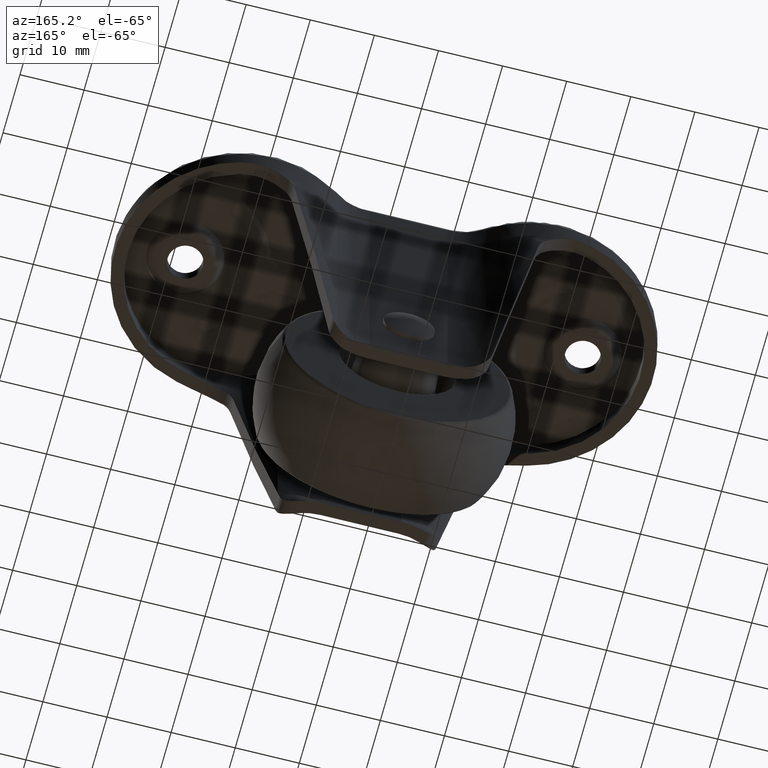
[diagram: clean part render]
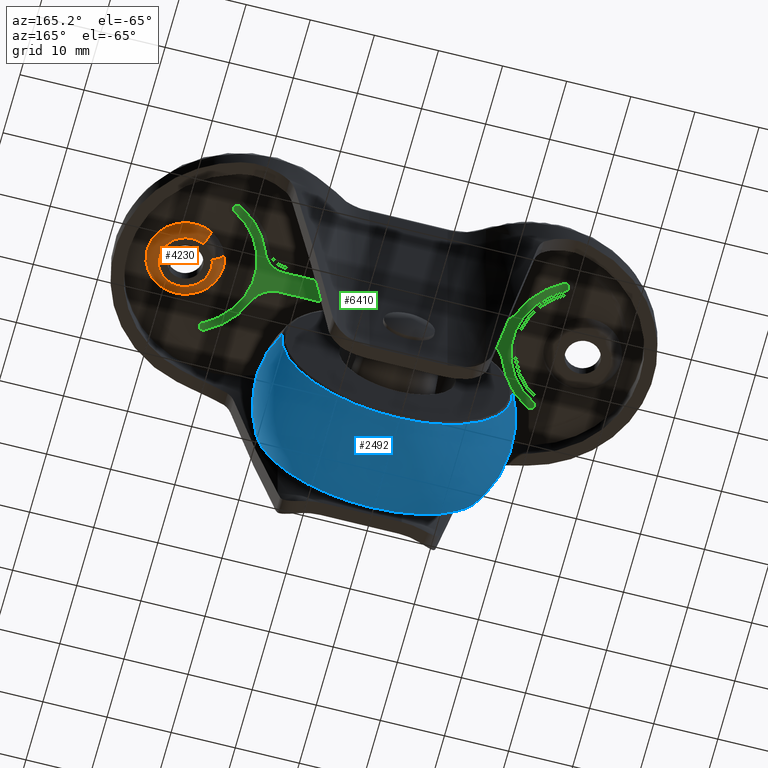
[diagram: same view with three faces highlighted in distinct colors, each labeled with its STEP entity id]
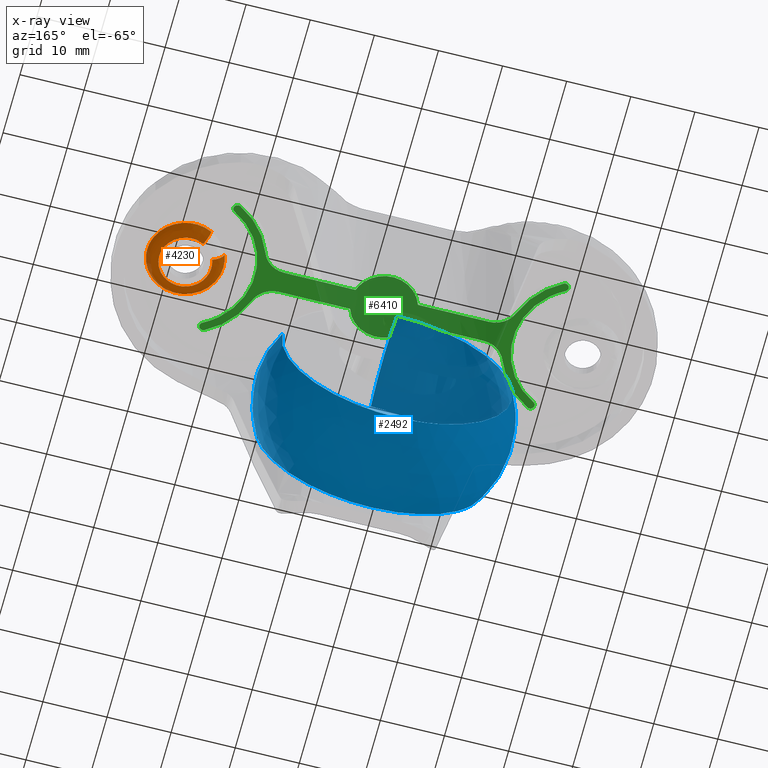
[diagram: x-ray of the same camera — body ghosted, the three highlighted faces saturated]
A machine part, auxiliary view with three faces highlighted in distinct colors.
The next image is the same camera in x-ray (body ghosted, the three faces saturated) — at least one of them is partly hidden behind the body in this view.
Their STEP definitions:

[orange] entity #4230 — the highlighted face is a freeform B-spline surface patch.
#4068=CARTESIAN_POINT('',(28.312324597725734,5.334928133989206,-2.092603392390837));
#4069=CARTESIAN_POINT('',(30.626397353814820,6.500731359338946,-2.092603392390837));
#4070=CARTESIAN_POINT('',(33.058792437057235,5.607711740445977,-2.092603392390837));
#4071=CARTESIAN_POINT('',(38.666504177503214,3.548919303388741,-2.092603392390837));
#4072=CARTESIAN_POINT('',(36.607711740445978,-2.058792437057237,-2.092603392390837));
#4073=CARTESIAN_POINT('',(34.548919303388750,-7.666504177503215,-2.092603392390837));
#4074=CARTESIAN_POINT('',(28.941207562942761,-5.607711740445976,-2.092603392390837));
#4075=CARTESIAN_POINT('',(23.333495822496790,-3.548919303388740,-2.092603392390837));
#4076=CARTESIAN_POINT('',(25.392288259554029,2.058792437057237,-2.092603392390837));
#4077=CARTESIAN_POINT('',(28.520642730723726,4.921424975233269,-3.585073412807262));
#4078=CARTESIAN_POINT('',(30.655354796246488,5.996868348666966,-3.585073412807261));
#4079=CARTESIAN_POINT('',(32.899218183278229,5.173065488457334,-3.585073412807261));
#4080=CARTESIAN_POINT('',(38.072283671735555,3.273847305179112,-3.585073412807261));
#4081=CARTESIAN_POINT('',(36.173065488457326,-1.899218183278221,-3.585073412807261));
#4082=CARTESIAN_POINT('',(34.273847305179103,-7.072283671735552,-3.585073412807261));
#4083=CARTESIAN_POINT('',(29.100781816721778,-5.173065488457334,-3.585073412807261));
#4084=CARTESIAN_POINT('',(23.927716328264442,-3.273847305179110,-3.585073412807261));
#4085=CARTESIAN_POINT('',(25.826934511542664,1.899218183278221,-3.585073412807261));
#4086=CARTESIAN_POINT('',(29.222581123483732,3.528105351630736,-3.496806839676225));
#4087=CARTESIAN_POINT('',(30.752928350244950,4.299076674018394,-3.496806839676224));
#4088=CARTESIAN_POINT('',(32.361524735225835,3.708503152239461,-3.496806839676225));
#4089=CARTESIAN_POINT('',(36.070027887465301,2.346978417013624,-3.496806839676225));
#4090=CARTESIAN_POINT('',(34.708503152239466,-1.361524735225836,-3.496806839676225));
#4091=CARTESIAN_POINT('',(33.346978417013631,-5.070027887465298,-3.496806839676225));
#4092=CARTESIAN_POINT('',(29.638475264774168,-3.708503152239461,-3.496806839676225));
#4093=CARTESIAN_POINT('',(25.929972112534703,-2.346978417013624,-3.496806839676225));
#4094=CARTESIAN_POINT('',(27.291496847760541,1.361524735225836,-3.496806839676225));
#4102=(BOUNDED_SURFACE()B_SPLINE_SURFACE(2,2,((#4068,#4077,#4086),(#4069,#4078,#4087),(#4070,#4079,#4088),(#4071,#4080,#4089),(#4072,#4081,#4090),(#4073,#4082,#4091),(#4074,#4083,#4092),(#4075,#4084,#4093),(#4076,#4085,#4094)),.UNSPECIFIED.,.F.,.F.,.U.)B_SPLINE_SURFACE_WITH_KNOTS((3,2,2,2,3),(3,3),(0.0,5.146723448267723,15.044268904130069,24.941814359992421,34.839359815854763),(0.0,2.754717168718973),.UNSPECIFIED.)GEOMETRIC_REPRESENTATION_ITEM()RATIONAL_B_SPLINE_SURFACE(((0.784923492481757,0.617762965718652,0.783009258505925),(0.779322697791132,0.613354939240144,0.777422122766256),(0.919342698590256,0.723555706298477,0.917100649465812),(0.650073456407510,0.511631146489875,0.648488088267863),(0.919342698590256,0.723555706298477,0.917100649465812),(0.650073456407510,0.511631146489875,0.648488088267863),(0.919342698590256,0.723555706298477,0.917100649465812),(0.650073456407510,0.511631146489875,0.648488088267863),(0.919342698590256,0.723555706298477,0.917100649465812)))REPRESENTATION_ITEM('')SURFACE());
#4103=CARTESIAN_POINT('',(29.171753296202120,3.628996270127606,-3.499999999999999));
#4104=VERTEX_POINT('',#4103);
#4105=CARTESIAN_POINT('',(35.063508326896290,0.0,-3.500000000000000));
#4106=VERTEX_POINT('',#4105);
#4107=CARTESIAN_POINT('',(29.171753296202123,3.628996270127606,-3.500000000000000));
#4108=CARTESIAN_POINT('',(30.034242279848637,4.063508326896290,-3.500000000000001));
#4109=CARTESIAN_POINT('',(31.0,4.063508326896290,-3.500000000000000));
#4110=CARTESIAN_POINT('',(35.063508326896304,4.063508326896290,-3.499999999999999));
#4111=CARTESIAN_POINT('',(35.063508326896290,0.0,-3.500000000000000));
#4119=(BOUNDED_CURVE()B_SPLINE_CURVE(2,(#4107,#4108,#4109,#4110,#4111),.UNSPECIFIED.,.F.,.U.)B_SPLINE_CURVE_WITH_KNOTS((3,2,3),(0.673503083069541,0.750000000000000,1.0),.UNSPECIFIED.)CURVE()GEOMETRIC_REPRESENTATION_ITEM()RATIONAL_B_SPLINE_CURVE((0.875602851992431,0.910378287083730,1.0,0.707106781186548,1.0))REPRESENTATION_ITEM(''));
#4120=EDGE_CURVE('',#4104,#4106,#4119,.T.);
#4121=ORIENTED_EDGE('',*,*,#4120,.F.);
#4122=CARTESIAN_POINT('',(28.328831657542040,5.302161863789421,-2.199999999988395));
#4123=VERTEX_POINT('',#4122);
#4124=CARTESIAN_POINT('',(28.328831657542040,5.302161863789421,-2.199999999988396));
#4125=CARTESIAN_POINT('',(28.547366896932981,4.868378191807821,-3.499999997303271));
#4126=CARTESIAN_POINT('',(29.171753296202116,3.628996270127606,-3.499999999999999));
#4134=(BOUNDED_CURVE()B_SPLINE_CURVE(2,(#4124,#4125,#4126),.UNSPECIFIED.,.F.,.U.)B_SPLINE_CURVE_WITH_KNOTS((3,3),(-1.674019596871434,-0.334035094913412),.UNSPECIFIED.)CURVE()GEOMETRIC_REPRESENTATION_ITEM()RATIONAL_B_SPLINE_CURVE((0.770336471141450,0.632217596236664,0.768685918290773))REPRESENTATION_ITEM(''));
#4135=EDGE_CURVE('',#4123,#4104,#4134,.T.);
#4136=ORIENTED_EDGE('',*,*,#4135,.F.);
#4137=CARTESIAN_POINT('',(36.874231720969000,0.861082128418889,-2.200000000000000));
#4138=VERTEX_POINT('',#4137);
#4139=CARTESIAN_POINT('',(28.328831657542040,5.302161863789421,-2.199999999988395));
#4140=CARTESIAN_POINT('',(29.386804474302348,5.835156436175389,-2.200000000000001));
#4141=CARTESIAN_POINT('',(30.568316302501980,5.921292927126259,-2.200000000000000));
#4142=CARTESIAN_POINT('',(36.073640331419760,6.322650985573358,-2.200000000000001));
#4143=CARTESIAN_POINT('',(36.874231720969007,0.861082128418892,-2.200000000000000));
#4151=(BOUNDED_CURVE()B_SPLINE_CURVE(2,(#4139,#4140,#4141,#4142,#4143),.UNSPECIFIED.,.F.,.U.)B_SPLINE_CURVE_WITH_KNOTS((3,2,3),(0.682067524614968,0.750000000000000,1.0),.UNSPECIFIED.)CURVE()GEOMETRIC_REPRESENTATION_ITEM()RATIONAL_B_SPLINE_CURVE((0.894073085266753,0.927274980150044,1.0,0.732362837369902,1.0))REPRESENTATION_ITEM(''));
#4152=EDGE_CURVE('',#4123,#4138,#4151,.T.);
#4153=ORIENTED_EDGE('',*,*,#4152,.T.);
#4154=CARTESIAN_POINT('',(36.874231720969000,-0.861082128418889,-2.200000000000000));
#4155=VERTEX_POINT('',#4154);
#4156=CARTESIAN_POINT('',(36.874231720969000,0.861082128418889,-2.200000000000000));
#4157=CARTESIAN_POINT('',(36.916306013523467,0.574054752279259,-2.200000000000006));
#4158=CARTESIAN_POINT('',(36.958228241231893,-1.084202E-015,-2.198610678664468));
#4159=CARTESIAN_POINT('',(36.916306013523467,-0.574054752279259,-2.200000000000006));
#4160=CARTESIAN_POINT('',(36.874231720969000,-0.861082128418888,-2.200000000000000));
#4161=B_SPLINE_CURVE_WITH_KNOTS('',3,(#4156,#4157,#4158,#4159,#4160),.UNSPECIFIED.,.F.,.U.,(4,1,4),(0.0,0.500000000000000,1.0),.UNSPECIFIED.);
#4162=EDGE_CURVE('',#4138,#4155,#4161,.T.);
#4163=ORIENTED_EDGE('',*,*,#4162,.T.);
#4164=CARTESIAN_POINT('',(25.426729834078269,2.046147697793684,-2.199999999995812));
#4165=VERTEX_POINT('',#4164);
#4166=CARTESIAN_POINT('',(36.874231720969007,-0.861082128418891,-2.200000000000000));
#4167=CARTESIAN_POINT('',(36.073640331419760,-6.322650985573359,-2.200000000000001));
#4168=CARTESIAN_POINT('',(30.568316302501980,-5.921292927126259,-2.200000000000000));
#4169=CARTESIAN_POINT('',(25.062992273584189,-5.519934868679157,-2.200000000000001));
#4170=CARTESIAN_POINT('',(25.062992273584189,0.0,-2.200000000000000));
#4171=CARTESIAN_POINT('',(25.062992273584193,1.055404118401007,-2.200000000000000));
#4172=CARTESIAN_POINT('',(25.426729834078269,2.046147697793683,-2.199999999995812));
#4180=(BOUNDED_CURVE()B_SPLINE_CURVE(2,(#4166,#4167,#4168,#4169,#4170,#4171,#4172),.UNSPECIFIED.,.F.,.U.)B_SPLINE_CURVE_WITH_KNOTS((3,2,2,3),(0.0,0.250000000000000,0.500000000000000,0.561005164668083),.UNSPECIFIED.)CURVE()GEOMETRIC_REPRESENTATION_ITEM()RATIONAL_B_SPLINE_CURVE((1.0,0.732362837369902,1.0,0.732362837369902,1.0,0.934691003289809,0.901255495368518))REPRESENTATION_ITEM(''));
#4181=EDGE_CURVE('',#4155,#4165,#4180,.T.);
#4182=ORIENTED_EDGE('',*,*,#4181,.T.);
#4183=CARTESIAN_POINT('',(27.185447145747698,1.400459392337944,-3.499999999999999));
#4184=VERTEX_POINT('',#4183);
#4185=CARTESIAN_POINT('',(25.426729834078277,2.046147697793684,-2.199999999995812));
#4186=CARTESIAN_POINT('',(25.882693579451235,1.878747026303524,-3.499999988948963));
#4187=CARTESIAN_POINT('',(27.185447145747702,1.400459392337944,-3.500000000000000));
#4195=(BOUNDED_CURVE()B_SPLINE_CURVE(2,(#4185,#4186,#4187),.UNSPECIFIED.,.F.,.U.)B_SPLINE_CURVE_WITH_KNOTS((3,3),(-1.674019596862119,-0.334035101980704),.UNSPECIFIED.)CURVE()GEOMETRIC_REPRESENTATION_ITEM()RATIONAL_B_SPLINE_CURVE((0.902257629708614,0.740485712243223,0.900324415774663))REPRESENTATION_ITEM(''));
#4196=EDGE_CURVE('',#4165,#4184,#4195,.T.);
#4197=ORIENTED_EDGE('',*,*,#4196,.T.);
#4198=CARTESIAN_POINT('',(26.936491673103710,0.0,-3.500000000000000));
#4199=VERTEX_POINT('',#4198);
#4200=CARTESIAN_POINT('',(26.936491673103710,0.0,-3.500000000000000));
#4201=CARTESIAN_POINT('',(26.936491673103710,0.722357731425740,-3.500000000000000));
#4202=CARTESIAN_POINT('',(27.185447145747702,1.400459392337943,-3.499999999999999));
#4210=(BOUNDED_CURVE()B_SPLINE_CURVE(2,(#4200,#4201,#4202),.UNSPECIFIED.,.F.,.U.)B_SPLINE_CURVE_WITH_KNOTS((3,3),(0.500000000000000,0.558539649918965),.UNSPECIFIED.)CURVE()GEOMETRIC_REPRESENTATION_ITEM()RATIONAL_B_SPLINE_CURVE((1.0,0.931416534028087,0.894951884761974))REPRESENTATION_ITEM(''));
#4211=EDGE_CURVE('',#4199,#4184,#4210,.T.);
#4212=ORIENTED_EDGE('',*,*,#4211,.F.);
#4213=CARTESIAN_POINT('',(35.063508326896290,0.0,-3.500000000000000));
#4214=CARTESIAN_POINT('',(35.063508326896304,-4.063508326896290,-3.499999999999999));
#4215=CARTESIAN_POINT('',(31.0,-4.063508326896290,-3.500000000000000));
#4216=CARTESIAN_POINT('',(26.936491673103703,-4.063508326896290,-3.499999999999999));
#4217=CARTESIAN_POINT('',(26.936491673103710,0.0,-3.500000000000000));
#4225=(BOUNDED_CURVE()B_SPLINE_CURVE(2,(#4213,#4214,#4215,#4216,#4217),.UNSPECIFIED.,.F.,.U.)B_SPLINE_CURVE_WITH_KNOTS((3,2,3),(0.0,0.250000000000000,0.500000000000000),.UNSPECIFIED.)CURVE()GEOMETRIC_REPRESENTATION_ITEM()RATIONAL_B_SPLINE_CURVE((1.0,0.707106781186548,1.0,0.707106781186548,1.0))REPRESENTATION_ITEM(''));
#4226=EDGE_CURVE('',#4106,#4199,#4225,.T.);
#4227=ORIENTED_EDGE('',*,*,#4226,.F.);
#4228=EDGE_LOOP('',(#4121,#4136,#4153,#4163,#4182,#4197,#4212,#4227));
#4229=FACE_OUTER_BOUND('',#4228,.T.);
#4230=ADVANCED_FACE('',(#4229),#4102,.T.);

[blue] entity #2492 — the highlighted face is a freeform B-spline surface patch.
#1856=CARTESIAN_POINT('',(-6.583102474062869,7.741935983909096,-56.755388244434762));
#1857=VERTEX_POINT('',#1856);
#1871=CARTESIAN_POINT('',(-15.883205385239179,7.741946591250689,-31.526281791966980));
#1872=VERTEX_POINT('',#1871);
#1873=CARTESIAN_POINT('',(-6.583102474062869,7.741935983909096,-56.755388244434755));
#1874=CARTESIAN_POINT('',(-18.002229203415219,7.741937794318643,-52.268875533489513));
#1875=CARTESIAN_POINT('',(-18.002228743686022,7.741942987803516,-40.000004819484943));
#1876=CARTESIAN_POINT('',(-18.002228574997702,7.741944893447470,-35.498191517728969));
#1877=CARTESIAN_POINT('',(-15.883205385239178,7.741946591250690,-31.526281791966980));
#1885=(BOUNDED_CURVE()B_SPLINE_CURVE(2,(#1873,#1874,#1875,#1876,#1877),.UNSPECIFIED.,.F.,.U.)B_SPLINE_CURVE_WITH_KNOTS((3,2,3),(0.562091869762726,0.750000000000000,0.830114582980019),.UNSPECIFIED.)CURVE()GEOMETRIC_REPRESENTATION_ITEM()RATIONAL_B_SPLINE_CURVE((0.890644758454391,0.779851931574349,1.0,0.906139927668339,0.872436339763282))REPRESENTATION_ITEM(''));
#1886=EDGE_CURVE('',#1857,#1872,#1885,.T.);
#1979=CARTESIAN_POINT('',(0.0,7.741951547438309,-21.997779239106979));
#1980=VERTEX_POINT('',#1979);
#1981=CARTESIAN_POINT('',(-15.883205385239178,7.741946591250690,-31.526281791966980));
#1982=CARTESIAN_POINT('',(-10.799728147037877,7.741951186537047,-21.997779546414485));
#1983=CARTESIAN_POINT('',(0.0,7.741951547438309,-21.997779239106979));
#1991=(BOUNDED_CURVE()B_SPLINE_CURVE(2,(#1981,#1982,#1983),.UNSPECIFIED.,.F.,.U.)B_SPLINE_CURVE_WITH_KNOTS((3,3),(0.830114582980019,1.0),.UNSPECIFIED.)CURVE()GEOMETRIC_REPRESENTATION_ITEM()RATIONAL_B_SPLINE_CURVE((0.872436339763282,0.800966853518208,1.0))REPRESENTATION_ITEM(''));
#1992=EDGE_CURVE('',#1872,#1980,#1991,.T.);
#1994=CARTESIAN_POINT('',(17.881824193254381,7.741935547214126,-37.921386432067912));
#1995=VERTEX_POINT('',#1994);
#2009=CARTESIAN_POINT('',(0.0,7.741935547366899,-58.002229607473851));
#2010=VERTEX_POINT('',#2009);
#2011=CARTESIAN_POINT('',(17.881824193254381,7.741935547214126,-37.921386432067912));
#2012=CARTESIAN_POINT('',(18.002229607473847,7.741935547366898,-38.957205924249116));
#2013=CARTESIAN_POINT('',(18.002229607473851,7.741935547366899,-40.0));
#2014=CARTESIAN_POINT('',(18.002229607473854,7.741935547366898,-58.002229607473836));
#2015=CARTESIAN_POINT('',(0.0,7.741935547366899,-58.002229607473851));
#2023=(BOUNDED_CURVE()B_SPLINE_CURVE(2,(#2011,#2012,#2013,#2014,#2015),.UNSPECIFIED.,.F.,.U.)B_SPLINE_CURVE_WITH_KNOTS((3,2,3),(0.229999999997610,0.250000000000000,0.500000000000000),.UNSPECIFIED.)CURVE()GEOMETRIC_REPRESENTATION_ITEM()RATIONAL_B_SPLINE_CURVE((0.956886118185955,0.976568542492124,1.0,0.707106781186547,1.0))REPRESENTATION_ITEM(''));
#2024=EDGE_CURVE('',#1995,#2010,#2023,.T.);
#2026=CARTESIAN_POINT('',(0.0,7.741935547366899,-58.002229607473851));
#2027=CARTESIAN_POINT('',(-3.409627338282087,7.741935547366898,-58.002229607473851));
#2028=CARTESIAN_POINT('',(-6.583102474062869,7.741935983909096,-56.755388244434755));
#2036=(BOUNDED_CURVE()B_SPLINE_CURVE(2,(#2026,#2027,#2028),.UNSPECIFIED.,.F.,.U.)B_SPLINE_CURVE_WITH_KNOTS((3,3),(0.500000000000000,0.562091869762726),.UNSPECIFIED.)CURVE()GEOMETRIC_REPRESENTATION_ITEM()RATIONAL_B_SPLINE_CURVE((1.0,0.927254849612198,0.890644758454391))REPRESENTATION_ITEM(''));
#2037=EDGE_CURVE('',#2010,#1857,#2036,.T.);
#2066=CARTESIAN_POINT('',(-15.665247738888519,-7.741937070541369,-48.870190728865282));
#2067=VERTEX_POINT('',#2066);
#2068=CARTESIAN_POINT('',(0.0,-7.741943057777658,-21.997774519785970));
#2069=VERTEX_POINT('',#2068);
#2070=CARTESIAN_POINT('',(-15.665247738888526,-7.741937070541369,-48.870190728865289));
#2071=CARTESIAN_POINT('',(-18.002229675233551,-7.741938274349529,-44.742952509890358));
#2072=CARTESIAN_POINT('',(-18.002229675233551,-7.741939271816439,-40.000002097509757));
#2073=CARTESIAN_POINT('',(-18.002229675233544,-7.741943057777659,-21.997774519785970));
#2074=CARTESIAN_POINT('',(0.0,-7.741943057777658,-21.997774519785970));
#2082=(BOUNDED_CURVE()B_SPLINE_CURVE(2,(#2070,#2071,#2072,#2073,#2074),.UNSPECIFIED.,.F.,.U.)B_SPLINE_CURVE_WITH_KNOTS((3,2,3),(0.666016369419231,0.750000000000000,1.0),.UNSPECIFIED.)CURVE()GEOMETRIC_REPRESENTATION_ITEM()RATIONAL_B_SPLINE_CURVE((0.869321285877861,0.901607056446235,1.0,0.707106781186548,1.0))REPRESENTATION_ITEM(''));
#2083=EDGE_CURVE('',#2067,#2069,#2082,.T.);
#2186=CARTESIAN_POINT('',(0.0,-7.741935485855220,-58.002229675233551));
#2187=VERTEX_POINT('',#2186);
#2188=CARTESIAN_POINT('',(0.0,-7.741935485855220,-58.002229675233551));
#2189=CARTESIAN_POINT('',(-10.494380521530118,-7.741935485855220,-58.002229675233544));
#2190=CARTESIAN_POINT('',(-15.665247738888517,-7.741937070541369,-48.870190728865282));
#2198=(BOUNDED_CURVE()B_SPLINE_CURVE(2,(#2188,#2189,#2190),.UNSPECIFIED.,.F.,.U.)B_SPLINE_CURVE_WITH_KNOTS((3,3),(0.500000000000000,0.666016369419231),.UNSPECIFIED.)CURVE()GEOMETRIC_REPRESENTATION_ITEM()RATIONAL_B_SPLINE_CURVE((1.0,0.805499724740313,0.869321285877860))REPRESENTATION_ITEM(''));
#2199=EDGE_CURVE('',#2187,#2067,#2198,.T.);
#2201=CARTESIAN_POINT('',(17.881824247721340,-7.741935478560965,-37.921386425737921));
#2202=VERTEX_POINT('',#2201);
#2203=CARTESIAN_POINT('',(17.881824247721347,-7.741935478560965,-37.921386425737914));
#2204=CARTESIAN_POINT('',(18.002229675233554,-7.741935485855221,-38.957205920325414));
#2205=CARTESIAN_POINT('',(18.002229675233551,-7.741935485855220,-40.0));
#2206=CARTESIAN_POINT('',(18.002229675233544,-7.741935485855221,-58.002229675233544));
#2207=CARTESIAN_POINT('',(0.0,-7.741935485855220,-58.002229675233551));
#2215=(BOUNDED_CURVE()B_SPLINE_CURVE(2,(#2203,#2204,#2205,#2206,#2207),.UNSPECIFIED.,.F.,.U.)B_SPLINE_CURVE_WITH_KNOTS((3,2,3),(0.229999999997635,0.250000000000000,0.500000000000000),.UNSPECIFIED.)CURVE()GEOMETRIC_REPRESENTATION_ITEM()RATIONAL_B_SPLINE_CURVE((0.956886118186004,0.976568542492153,1.0,0.707106781186548,1.0))REPRESENTATION_ITEM(''));
#2216=EDGE_CURVE('',#2202,#2187,#2215,.T.);
#2422=CARTESIAN_POINT('',(17.496559419946646,8.405290714135607,-37.966170700163929));
#2423=CARTESIAN_POINT('',(22.651137600508850,0.000005855489433,-37.366993920301063));
#2424=CARTESIAN_POINT('',(17.496564619774055,-8.405282235059405,-37.966170095727307));
#2425=CARTESIAN_POINT('',(17.614370643216155,8.405290714135607,-38.979673194418410));
#2426=CARTESIAN_POINT('',(22.803656628113789,0.000005855489433,-38.679079565530564));
#2427=CARTESIAN_POINT('',(17.614375878056066,-8.405282235059405,-38.979672891186055));
#2428=CARTESIAN_POINT('',(17.614370643216159,8.405290714135607,-39.999999999999993));
#2429=CARTESIAN_POINT('',(22.803656628113785,0.000005855489433,-40.0));
#2430=CARTESIAN_POINT('',(17.614375878056066,-8.405282235059405,-40.000000000000007));
#2431=CARTESIAN_POINT('',(17.614370643216148,8.405290714135605,-57.614370643216148));
#2432=CARTESIAN_POINT('',(22.803656628113792,0.000005855489433,-62.803656628113785));
#2433=CARTESIAN_POINT('',(17.614375878056066,-8.405282235059403,-57.614375878056059));
#2434=CARTESIAN_POINT('',(0.0,8.405290714135607,-57.614370643216162));
#2435=CARTESIAN_POINT('',(0.0,0.000005855489433,-62.803656628113814));
#2436=CARTESIAN_POINT('',(0.0,-8.405282235059405,-57.614375878056066));
#2437=CARTESIAN_POINT('',(-17.614370643216148,8.405290714135605,-57.614370643216148));
#2438=CARTESIAN_POINT('',(-22.803656628113792,0.000005855489433,-62.803656628113785));
#2439=CARTESIAN_POINT('',(-17.614375878056066,-8.405282235059403,-57.614375878056059));
#2440=CARTESIAN_POINT('',(-17.614370643216159,8.405290714135607,-39.999999999999993));
#2441=CARTESIAN_POINT('',(-22.803656628113785,0.000005855489433,-40.0));
#2442=CARTESIAN_POINT('',(-17.614375878056066,-8.405282235059405,-40.000000000000007));
#2443=CARTESIAN_POINT('',(-17.614370643216148,8.405290714135605,-22.385629356783852));
#2444=CARTESIAN_POINT('',(-22.803656628113792,0.000005855489433,-17.196343371886226));
#2445=CARTESIAN_POINT('',(-17.614375878056066,-8.405282235059403,-22.385624121943945));
#2446=CARTESIAN_POINT('',(0.0,8.405290714135607,-22.385629356783848));
#2447=CARTESIAN_POINT('',(0.0,0.000005855489433,-17.196343371886211));
#2448=CARTESIAN_POINT('',(0.0,-8.405282235059405,-22.385624121943941));
#2456=(BOUNDED_SURFACE()B_SPLINE_SURFACE(2,2,((#2422,#2425,#2428,#2431,#2434,#2437,#2440,#2443,#2446),(#2423,#2426,#2429,#2432,#2435,#2438,#2441,#2444,#2447),(#2424,#2427,#2430,#2433,#2436,#2439,#2442,#2445,#2448)),.UNSPECIFIED.,.F.,.F.,.U.)B_SPLINE_SURFACE_WITH_KNOTS((3,3),(3,2,2,2,3),(0.0,18.164771870735130),(0.0,2.650966246152919,35.788051235999042,68.925136225845151,102.062221215691300),.UNSPECIFIED.)GEOMETRIC_REPRESENTATION_ITEM()RATIONAL_B_SPLINE_SURFACE(((0.941373274418783,0.960736607813914,0.983788194273083,0.695643303421766,0.983788194273083,0.695643303421766,0.983788194273083,0.695643303421766,0.983788194273083),(0.801012875174051,0.817489101743543,0.837103656404001,0.591921671999323,0.837103656404001,0.591921671999323,0.837103656404001,0.591921671999323,0.837103656404001),(0.941373108015195,0.960736437987531,0.983788020371943,0.695643180455091,0.983788020371943,0.695643180455091,0.983788020371943,0.695643180455091,0.983788020371943)))REPRESENTATION_ITEM('')SURFACE());
#2457=ORIENTED_EDGE('',*,*,#2024,.F.);
#2458=CARTESIAN_POINT('',(17.881824193254378,7.741935547214126,-37.921386432067912));
#2459=CARTESIAN_POINT('',(22.133767148921621,0.000000049482788,-37.427133372683564));
#2460=CARTESIAN_POINT('',(17.881824247721344,-7.741935478560965,-37.921386425737929));
#2468=(BOUNDED_CURVE()B_SPLINE_CURVE(2,(#2458,#2459,#2460),.UNSPECIFIED.,.F.,.U.)B_SPLINE_CURVE_WITH_KNOTS((3,3),(0.362871079323243,0.637128919142702),.UNSPECIFIED.)CURVE()GEOMETRIC_REPRESENTATION_ITEM()RATIONAL_B_SPLINE_CURVE((0.929203502125697,0.813182549960822,0.929203500827776))REPRESENTATION_ITEM(''));
#2469=EDGE_CURVE('',#1995,#2202,#2468,.T.);
#2470=ORIENTED_EDGE('',*,*,#2469,.T.);
#2471=ORIENTED_EDGE('',*,*,#2216,.T.);
#2472=ORIENTED_EDGE('',*,*,#2199,.T.);
#2473=ORIENTED_EDGE('',*,*,#2083,.T.);
#2474=CARTESIAN_POINT('',(0.0,7.741951547438311,-21.997779239106976));
#2475=CARTESIAN_POINT('',(0.0,0.000005549506526,-17.717188908290318));
#2476=CARTESIAN_POINT('',(0.0,-7.741943057777659,-21.997774519785970));
#2484=(BOUNDED_CURVE()B_SPLINE_CURVE(2,(#2474,#2475,#2476),.UNSPECIFIED.,.F.,.U.)B_SPLINE_CURVE_WITH_KNOTS((3,3),(0.362870755481486,0.637129072473942),.UNSPECIFIED.)CURVE()GEOMETRIC_REPRESENTATION_ITEM()RATIONAL_B_SPLINE_CURVE((0.971070390148924,0.849821449638029,0.971070238028040))REPRESENTATION_ITEM(''));
#2485=EDGE_CURVE('',#1980,#2069,#2484,.T.);
#2486=ORIENTED_EDGE('',*,*,#2485,.F.);
#2487=ORIENTED_EDGE('',*,*,#1992,.F.);
#2488=ORIENTED_EDGE('',*,*,#1886,.F.);
#2489=ORIENTED_EDGE('',*,*,#2037,.F.);
#2490=EDGE_LOOP('',(#2457,#2470,#2471,#2472,#2473,#2486,#2487,#2488,#2489));
#2491=FACE_OUTER_BOUND('',#2490,.T.);
#2492=ADVANCED_FACE('',(#2491),#2456,.T.);

[green] entity #6410 — the highlighted face is a freeform B-spline surface patch.
#4312=CARTESIAN_POINT('',(-25.196794784799302,-10.656272741060620,-2.500000000000000));
#4313=VERTEX_POINT('',#4312);
#4314=CARTESIAN_POINT('',(-26.133974597908079,-10.099505007401669,-2.500000000000000));
#4315=VERTEX_POINT('',#4314);
#4316=CARTESIAN_POINT('',(-25.196794784799302,-10.656272741060620,-2.500000000000000));
#4317=CARTESIAN_POINT('',(-25.518244791713311,-10.831328416259923,-2.500000000000000));
#4318=CARTESIAN_POINT('',(-25.830572428652012,-10.640472335484930,-2.500000000000000));
#4319=CARTESIAN_POINT('',(-26.133974587912945,-10.455070404414132,-2.500000000000000));
#4320=CARTESIAN_POINT('',(-26.133974597908082,-10.099505007401675,-2.500000000000000));
#4328=(BOUNDED_CURVE()B_SPLINE_CURVE(2,(#4316,#4317,#4318,#4319,#4320),.UNSPECIFIED.,.F.,.U.)B_SPLINE_CURVE_WITH_KNOTS((3,2,3),(0.0,0.333333333333333,0.658385407540273),.UNSPECIFIED.)CURVE()GEOMETRIC_REPRESENTATION_ITEM()RATIONAL_B_SPLINE_CURVE((1.0,0.866025403664095,1.0,0.869353838709930,0.993508511706930))REPRESENTATION_ITEM(''));
#4329=EDGE_CURVE('',#4313,#4315,#4328,.T.);
#4402=CARTESIAN_POINT('',(-25.803205240285649,-9.542737210962001,-2.500000000000000));
#4403=VERTEX_POINT('',#4402);
#4404=CARTESIAN_POINT('',(-26.133974597908082,-10.099505007401675,-2.500000000000000));
#4405=CARTESIAN_POINT('',(-26.133974596400062,-10.091603553433030,-2.500000000000000));
#4406=CARTESIAN_POINT('',(-26.133777669466031,-10.083704546433960,-2.500000000000000));
#4407=CARTESIAN_POINT('',(-26.124655273341361,-9.717792838157989,-2.500000000000000));
#4408=CARTESIAN_POINT('',(-25.803205240285600,-9.542737210962088,-2.500000000000000));
#4416=(BOUNDED_CURVE()B_SPLINE_CURVE(2,(#4404,#4405,#4406,#4407,#4408),.UNSPECIFIED.,.F.,.U.)B_SPLINE_CURVE_WITH_KNOTS((3,2,3),(0.658385407540273,0.666666666666667,1.0),.UNSPECIFIED.)CURVE()GEOMETRIC_REPRESENTATION_ITEM()RATIONAL_B_SPLINE_CURVE((0.993508511706930,0.996671564954165,1.0,0.866025403664095,1.0))REPRESENTATION_ITEM(''));
#4417=EDGE_CURVE('',#4315,#4403,#4416,.T.);
#4476=CARTESIAN_POINT('',(-25.803205265370149,9.542737162984860,-2.500000000000000));
#4477=VERTEX_POINT('',#4476);
#4478=CARTESIAN_POINT('',(-26.133974597908079,10.099505007401810,-2.500000000000000));
#4479=VERTEX_POINT('',#4478);
#4480=CARTESIAN_POINT('',(-25.803205265370149,9.542737162984860,-2.500000000000000));
#4481=CARTESIAN_POINT('',(-26.124655272789870,9.717792837255603,-2.500000000000000));
#4482=CARTESIAN_POINT('',(-26.133777669443202,10.083704545518430,-2.500000000000000));
#4483=CARTESIAN_POINT('',(-26.133974596400058,10.091603552975110,-2.500000000000000));
#4484=CARTESIAN_POINT('',(-26.133974597908079,10.099505007401813,-2.500000000000000));
#4492=(BOUNDED_CURVE()B_SPLINE_CURVE(2,(#4480,#4481,#4482,#4483,#4484),.UNSPECIFIED.,.F.,.U.)B_SPLINE_CURVE_WITH_KNOTS((3,2,3),(0.0,0.333333333333333,0.341614592938200),.UNSPECIFIED.)CURVE()GEOMETRIC_REPRESENTATION_ITEM()RATIONAL_B_SPLINE_CURVE((1.0,0.866025403664081,1.0,0.996671564761855,0.993508511341421))REPRESENTATION_ITEM(''));
#4493=EDGE_CURVE('',#4477,#4479,#4492,.T.);
#4576=CARTESIAN_POINT('',(-25.196794759714749,10.656272789037899,-2.500000000000000));
#4577=VERTEX_POINT('',#4576);
#4578=CARTESIAN_POINT('',(-26.133974597908079,10.099505007401810,-2.500000000000000));
#4579=CARTESIAN_POINT('',(-26.133974587912956,10.455070403812256,-2.500000000000000));
#4580=CARTESIAN_POINT('',(-25.830572429433570,10.640472335007480,-2.500000000000000));
#4581=CARTESIAN_POINT('',(-25.518244792770584,10.831328416233720,-2.500000000000000));
#4582=CARTESIAN_POINT('',(-25.196794759714709,10.656272789037990,-2.500000000000000));
#4590=(BOUNDED_CURVE()B_SPLINE_CURVE(2,(#4578,#4579,#4580,#4581,#4582),.UNSPECIFIED.,.F.,.U.)B_SPLINE_CURVE_WITH_KNOTS((3,2,3),(0.341614592938200,0.666666666666667,1.0),.UNSPECIFIED.)CURVE()GEOMETRIC_REPRESENTATION_ITEM()RATIONAL_B_SPLINE_CURVE((0.993508511341421,0.869353838902226,1.0,0.866025403664081,1.0))REPRESENTATION_ITEM(''));
#4591=EDGE_CURVE('',#4479,#4577,#4590,.T.);
#5224=CARTESIAN_POINT('',(25.196794759714550,-10.656272789037761,-2.500000000000000));
#5225=VERTEX_POINT('',#5224);
#5254=CARTESIAN_POINT('',(19.605455269349150,-4.171053809626731,-2.500000000000000));
#5255=VERTEX_POINT('',#5254);
#5269=CARTESIAN_POINT('',(25.196794759714550,-10.656272789037761,-2.500000000000000));
#5270=CARTESIAN_POINT('',(21.178346910318584,-8.467901795171391,-2.500000000000000));
#5271=CARTESIAN_POINT('',(19.605455269349150,-4.171053809626727,-2.500000000000000));
#5279=(BOUNDED_CURVE()B_SPLINE_CURVE(2,(#5269,#5270,#5271),.UNSPECIFIED.,.F.,.U.)CURVE()GEOMETRIC_REPRESENTATION_ITEM()QUASI_UNIFORM_CURVE()RATIONAL_B_SPLINE_CURVE((1.0,0.935682532367563,1.0))REPRESENTATION_ITEM(''));
#5280=EDGE_CURVE('',#5225,#5255,#5279,.T.);
#5330=CARTESIAN_POINT('',(25.803205265370149,-9.542737162984860,-2.500000000000000));
#5331=VERTEX_POINT('',#5330);
#5363=CARTESIAN_POINT('',(25.803205265370149,-9.542737162984860,-2.500000000000000));
#5364=CARTESIAN_POINT('',(26.124655272789926,-9.717792837255541,-2.500000000000000));
#5365=CARTESIAN_POINT('',(26.133777669443209,-10.083704545518390,-2.500000000000000));
#5366=CARTESIAN_POINT('',(26.142900066096491,-10.449616253781237,-2.500000000000000));
#5367=CARTESIAN_POINT('',(25.830572429433438,-10.640472335007420,-2.500000000000000));
#5368=CARTESIAN_POINT('',(25.518244792770403,-10.831328416233596,-2.500000000000000));
#5369=CARTESIAN_POINT('',(25.196794759714550,-10.656272789037761,-2.500000000000000));
#5377=(BOUNDED_CURVE()B_SPLINE_CURVE(2,(#5363,#5364,#5365,#5366,#5367,#5368,#5369),.UNSPECIFIED.,.F.,.U.)B_SPLINE_CURVE_WITH_KNOTS((3,2,2,3),(0.0,0.333333333333333,0.666666666666667,1.0),.UNSPECIFIED.)CURVE()GEOMETRIC_REPRESENTATION_ITEM()RATIONAL_B_SPLINE_CURVE((1.0,0.866025403664066,1.0,0.866025403664066,1.0,0.866025403664066,1.0))REPRESENTATION_ITEM(''));
#5378=EDGE_CURVE('',#5331,#5225,#5377,.T.);
#5416=CARTESIAN_POINT('',(15.975020999999900,-1.633974596215450,-2.500000000000000));
#5417=VERTEX_POINT('',#5416);
#5431=CARTESIAN_POINT('',(19.605455269349150,-4.171053809626731,-2.500000000000000));
#5432=CARTESIAN_POINT('',(18.676739646279835,-1.633974596215450,-2.500000000000000));
#5433=CARTESIAN_POINT('',(15.975020999999900,-1.633974596215449,-2.500000000000000));
#5441=(BOUNDED_CURVE()B_SPLINE_CURVE(2,(#5431,#5432,#5433),.UNSPECIFIED.,.F.,.U.)CURVE()GEOMETRIC_REPRESENTATION_ITEM()QUASI_UNIFORM_CURVE()RATIONAL_B_SPLINE_CURVE((1.0,0.819679817337091,1.0))REPRESENTATION_ITEM(''));
#5442=EDGE_CURVE('',#5255,#5417,#5441,.T.);
#5472=CARTESIAN_POINT('',(25.803205240285450,9.542737210962141,-2.500000000000000));
#5473=VERTEX_POINT('',#5472);
#5503=CARTESIAN_POINT('',(25.803205240285450,9.542737210962141,-2.500000000000000));
#5504=CARTESIAN_POINT('',(20.133974596487601,6.455381032312219,-2.500000000000000));
#5505=CARTESIAN_POINT('',(20.133974596215559,4.579109E-010,-2.500000000000000));
#5506=CARTESIAN_POINT('',(20.133974595943521,-6.455381031396398,-2.500000000000000));
#5507=CARTESIAN_POINT('',(25.803205265370149,-9.542737162984857,-2.500000000000000));
#5515=(BOUNDED_CURVE()B_SPLINE_CURVE(2,(#5503,#5504,#5505,#5506,#5507),.UNSPECIFIED.,.F.,.U.)B_SPLINE_CURVE_WITH_KNOTS((3,2,3),(0.0,0.500000000000000,1.0),.UNSPECIFIED.)CURVE()GEOMETRIC_REPRESENTATION_ITEM()RATIONAL_B_SPLINE_CURVE((1.0,0.859726952976039,1.0,0.859726952976039,1.0))REPRESENTATION_ITEM(''));
#5516=EDGE_CURVE('',#5473,#5331,#5515,.T.);
#5543=CARTESIAN_POINT('',(4.867013681253559,-1.633974596215450,-2.500000000000000));
#5544=VERTEX_POINT('',#5543);
#5564=CARTESIAN_POINT('',(15.975020999999900,-1.633974596215450,-2.500000000000000));
#5565=CARTESIAN_POINT('',(4.867013681253559,-1.633974596215450,-2.500000000000000));
#5566=QUASI_UNIFORM_CURVE('',1,(#5564,#5565),.UNSPECIFIED.,.F.,.U.);
#5567=EDGE_CURVE('',#5417,#5544,#5566,.T.);
#5617=CARTESIAN_POINT('',(25.196794784799302,10.656272741060640,-2.500000000000000));
#5618=VERTEX_POINT('',#5617);
#5650=CARTESIAN_POINT('',(25.196794784799302,10.656272741060640,-2.500000000000000));
#5651=CARTESIAN_POINT('',(25.518244791713293,10.831328416260092,-2.500000000000000));
#5652=CARTESIAN_POINT('',(25.830572428652019,10.640472335485070,-2.500000000000000));
#5653=CARTESIAN_POINT('',(26.142900065590759,10.449616254710037,-2.500000000000000));
#5654=CARTESIAN_POINT('',(26.133777669466031,10.083704546434010,-2.500000000000000));
#5655=CARTESIAN_POINT('',(26.124655273341304,9.717792838157978,-2.500000000000000));
#5656=CARTESIAN_POINT('',(25.803205240285450,9.542737210962141,-2.500000000000000));
#5664=(BOUNDED_CURVE()B_SPLINE_CURVE(2,(#5650,#5651,#5652,#5653,#5654,#5655,#5656),.UNSPECIFIED.,.F.,.U.)B_SPLINE_CURVE_WITH_KNOTS((3,2,2,3),(0.0,0.333333333333333,0.666666666666667,1.0),.UNSPECIFIED.)CURVE()GEOMETRIC_REPRESENTATION_ITEM()RATIONAL_B_SPLINE_CURVE((1.0,0.866025403664064,1.0,0.866025403664064,1.0,0.866025403664064,1.0))REPRESENTATION_ITEM(''));
#5665=EDGE_CURVE('',#5618,#5473,#5664,.T.);
#5711=CARTESIAN_POINT('',(-4.867013681253559,-1.633974596215450,-2.500000000000000));
#5712=VERTEX_POINT('',#5711);
#5732=CARTESIAN_POINT('',(4.867013681253555,-1.633974596215447,-2.500000000000000));
#5733=CARTESIAN_POINT('',(3.691978749919383,-5.133974596215560,-2.500000000000000));
#5734=CARTESIAN_POINT('',(0.0,-5.133974596215560,-2.500000000000000));
#5735=CARTESIAN_POINT('',(-3.691978749919382,-5.133974596215560,-2.500000000000000));
#5736=CARTESIAN_POINT('',(-4.867013681253555,-1.633974596215448,-2.500000000000000));
#5744=(BOUNDED_CURVE()B_SPLINE_CURVE(2,(#5732,#5733,#5734,#5735,#5736),.UNSPECIFIED.,.F.,.U.)B_SPLINE_CURVE_WITH_KNOTS((3,2,3),(0.0,0.500000000000000,1.0),.UNSPECIFIED.)CURVE()GEOMETRIC_REPRESENTATION_ITEM()RATIONAL_B_SPLINE_CURVE((1.0,0.811870365632501,1.0,0.811870365632501,1.0))REPRESENTATION_ITEM(''));
#5745=EDGE_CURVE('',#5544,#5712,#5744,.T.);
#5769=CARTESIAN_POINT('',(19.605455450307200,4.171053754010929,-2.500000000000000));
#5770=VERTEX_POINT('',#5769);
#5798=CARTESIAN_POINT('',(19.605455450307200,4.171053754010929,-2.500000000000000));
#5799=CARTESIAN_POINT('',(21.178346915143141,8.467901797405556,-2.500000000000000));
#5800=CARTESIAN_POINT('',(25.196794784799302,10.656272741060640,-2.500000000000000));
#5808=(BOUNDED_CURVE()B_SPLINE_CURVE(2,(#5798,#5799,#5800),.UNSPECIFIED.,.F.,.U.)CURVE()GEOMETRIC_REPRESENTATION_ITEM()QUASI_UNIFORM_CURVE()RATIONAL_B_SPLINE_CURVE((1.0,0.935682532525947,1.0))REPRESENTATION_ITEM(''));
#5809=EDGE_CURVE('',#5770,#5618,#5808,.T.);
#5836=CARTESIAN_POINT('',(-15.975021000000201,-1.633974596215450,-2.500000000000000));
#5837=VERTEX_POINT('',#5836);
#5851=CARTESIAN_POINT('',(-4.867013681253559,-1.633974596215450,-2.500000000000000));
#5852=CARTESIAN_POINT('',(-15.975021000000201,-1.633974596215450,-2.500000000000000));
#5853=QUASI_UNIFORM_CURVE('',1,(#5851,#5852),.UNSPECIFIED.,.F.,.U.);
#5854=EDGE_CURVE('',#5712,#5837,#5853,.T.);
#5878=CARTESIAN_POINT('',(15.975020999999900,1.633974596215675,-2.500000000000000));
#5879=VERTEX_POINT('',#5878);
#5907=CARTESIAN_POINT('',(15.975020999999900,1.633974596215670,-2.500000000000000));
#5908=CARTESIAN_POINT('',(18.676739653704924,1.633974596215670,-2.500000000000001));
#5909=CARTESIAN_POINT('',(19.605455450307179,4.171053754010933,-2.500000000000000));
#5917=(BOUNDED_CURVE()B_SPLINE_CURVE(2,(#5907,#5908,#5909),.UNSPECIFIED.,.F.,.U.)CURVE()GEOMETRIC_REPRESENTATION_ITEM()QUASI_UNIFORM_CURVE()RATIONAL_B_SPLINE_CURVE((1.0,0.819679816597918,1.0))REPRESENTATION_ITEM(''));
#5918=EDGE_CURVE('',#5879,#5770,#5917,.T.);
#5956=CARTESIAN_POINT('',(-19.605455450307449,-4.171053754010700,-2.500000000000000));
#5957=VERTEX_POINT('',#5956);
#5971=CARTESIAN_POINT('',(-15.975021000000201,-1.633974596215449,-2.500000000000000));
#5972=CARTESIAN_POINT('',(-18.676739653705202,-1.633974596215449,-2.500000000000000));
#5973=CARTESIAN_POINT('',(-19.605455450307470,-4.171053754010691,-2.500000000000000));
#5981=(BOUNDED_CURVE()B_SPLINE_CURVE(2,(#5971,#5972,#5973),.UNSPECIFIED.,.F.,.U.)CURVE()GEOMETRIC_REPRESENTATION_ITEM()QUASI_UNIFORM_CURVE()RATIONAL_B_SPLINE_CURVE((1.0,0.819679816597920,1.0))REPRESENTATION_ITEM(''));
#5982=EDGE_CURVE('',#5837,#5957,#5981,.T.);
#6003=CARTESIAN_POINT('',(4.867013681253479,1.633974596215675,-2.500000000000000));
#6004=VERTEX_POINT('',#6003);
#6030=CARTESIAN_POINT('',(4.867013681253479,1.633974596215675,-2.500000000000000));
#6031=CARTESIAN_POINT('',(15.975020999999900,1.633974596215675,-2.500000000000000));
#6032=QUASI_UNIFORM_CURVE('',1,(#6030,#6031),.UNSPECIFIED.,.F.,.U.);
#6033=EDGE_CURVE('',#6004,#5879,#6032,.T.);
#6070=CARTESIAN_POINT('',(-19.605455450307449,-4.171053754010700,-2.500000000000000));
#6071=CARTESIAN_POINT('',(-21.178346915143077,-8.467901797405517,-2.500000000000000));
#6072=CARTESIAN_POINT('',(-25.196794784799291,-10.656272741060629,-2.500000000000000));
#6080=(BOUNDED_CURVE()B_SPLINE_CURVE(2,(#6070,#6071,#6072),.UNSPECIFIED.,.F.,.U.)CURVE()GEOMETRIC_REPRESENTATION_ITEM()QUASI_UNIFORM_CURVE()RATIONAL_B_SPLINE_CURVE((1.0,0.935682532525945,1.0))REPRESENTATION_ITEM(''));
#6081=EDGE_CURVE('',#5957,#4313,#6080,.T.);
#6111=CARTESIAN_POINT('',(-4.867013681253479,1.633974596215675,-2.500000000000000));
#6112=VERTEX_POINT('',#6111);
#6148=CARTESIAN_POINT('',(-4.867013681253479,1.633974596215674,-2.500000000000000));
#6149=CARTESIAN_POINT('',(-3.691978749919201,5.133974596215560,-2.500000000000000));
#6150=CARTESIAN_POINT('',(0.0,5.133974596215560,-2.500000000000000));
#6151=CARTESIAN_POINT('',(3.691978749919200,5.133974596215560,-2.500000000000000));
#6152=CARTESIAN_POINT('',(4.867013681253479,1.633974596215678,-2.500000000000000));
#6160=(BOUNDED_CURVE()B_SPLINE_CURVE(2,(#6148,#6149,#6150,#6151,#6152),.UNSPECIFIED.,.F.,.U.)B_SPLINE_CURVE_WITH_KNOTS((3,2,3),(0.0,0.500000000000000,1.0),.UNSPECIFIED.)CURVE()GEOMETRIC_REPRESENTATION_ITEM()RATIONAL_B_SPLINE_CURVE((1.0,0.811870365632515,1.0,0.811870365632515,1.0))REPRESENTATION_ITEM(''));
#6161=EDGE_CURVE('',#6112,#6004,#6160,.T.);
#6182=CARTESIAN_POINT('',(-15.975021000000201,1.633974596215675,-2.500000000000000));
#6183=VERTEX_POINT('',#6182);
#6203=CARTESIAN_POINT('',(-15.975021000000201,1.633974596215675,-2.500000000000000));
#6204=CARTESIAN_POINT('',(-4.867013681253479,1.633974596215675,-2.500000000000000));
#6205=QUASI_UNIFORM_CURVE('',1,(#6203,#6204),.UNSPECIFIED.,.F.,.U.);
#6206=EDGE_CURVE('',#6183,#6112,#6205,.T.);
#6251=CARTESIAN_POINT('',(-25.803205240285649,-9.542737210962001,-2.500000000000000));
#6252=CARTESIAN_POINT('',(-20.133974596487640,-6.455381032312317,-2.500000000000001));
#6253=CARTESIAN_POINT('',(-20.133974596215559,-4.579701E-010,-2.500000000000000));
#6254=CARTESIAN_POINT('',(-20.133974595943489,6.455381031396378,-2.500000000000001));
#6255=CARTESIAN_POINT('',(-25.803205265370149,9.542737162984857,-2.500000000000000));
#6263=(BOUNDED_CURVE()B_SPLINE_CURVE(2,(#6251,#6252,#6253,#6254,#6255),.UNSPECIFIED.,.F.,.U.)B_SPLINE_CURVE_WITH_KNOTS((3,2,3),(0.0,0.500000000000000,1.0),.UNSPECIFIED.)CURVE()GEOMETRIC_REPRESENTATION_ITEM()RATIONAL_B_SPLINE_CURVE((1.0,0.859726952976037,1.0,0.859726952976037,1.0))REPRESENTATION_ITEM(''));
#6264=EDGE_CURVE('',#4403,#4477,#6263,.T.);
#6288=CARTESIAN_POINT('',(-19.605455445887500,4.171053741936370,-2.500000000000000));
#6289=VERTEX_POINT('',#6288);
#6317=CARTESIAN_POINT('',(-19.605455445887500,4.171053741936369,-2.500000000000000));
#6318=CARTESIAN_POINT('',(-18.676739644136383,1.633974596215669,-2.500000000000000));
#6319=CARTESIAN_POINT('',(-15.975021000000201,1.633974596215670,-2.500000000000000));
#6327=(BOUNDED_CURVE()B_SPLINE_CURVE(2,(#6317,#6318,#6319),.UNSPECIFIED.,.F.,.U.)CURVE()GEOMETRIC_REPRESENTATION_ITEM()QUASI_UNIFORM_CURVE()RATIONAL_B_SPLINE_CURVE((1.0,0.819679817550500,1.0))REPRESENTATION_ITEM(''));
#6328=EDGE_CURVE('',#6289,#6183,#6327,.T.);
#6365=CARTESIAN_POINT('',(-25.196794759714749,10.656272789037899,-2.500000000000000));
#6366=CARTESIAN_POINT('',(-21.178346908874001,8.467901794384801,-2.500000000000000));
#6367=CARTESIAN_POINT('',(-19.605455445887500,4.171053741936370,-2.500000000000000));
#6375=(BOUNDED_CURVE()B_SPLINE_CURVE(2,(#6365,#6366,#6367),.UNSPECIFIED.,.F.,.U.)CURVE()GEOMETRIC_REPRESENTATION_ITEM()QUASI_UNIFORM_CURVE()RATIONAL_B_SPLINE_CURVE((1.0,0.935682532325681,1.0))REPRESENTATION_ITEM(''));
#6376=EDGE_CURVE('',#4577,#6289,#6375,.T.);
#6381=CARTESIAN_POINT('',(-28.744748226105909,-11.805667070169489,-2.500000000000000));
#6382=CARTESIAN_POINT('',(28.744553054777530,-11.805667070169489,-2.500000000000000));
#6383=CARTESIAN_POINT('',(-28.744748226105909,11.805666762193781,-2.500000000000000));
#6384=CARTESIAN_POINT('',(28.744553054777530,11.805666762193781,-2.500000000000000));
#6385=B_SPLINE_SURFACE_WITH_KNOTS('',1,1,((#6381,#6383),(#6382,#6384)),.UNSPECIFIED.,.F.,.F.,.U.,(2,2),(2,2),(0.0,57.489301280883438),(0.0,23.611333832363272),.UNSPECIFIED.);
#6386=ORIENTED_EDGE('',*,*,#4493,.T.);
#6387=ORIENTED_EDGE('',*,*,#4591,.T.);
#6388=ORIENTED_EDGE('',*,*,#6376,.T.);
#6389=ORIENTED_EDGE('',*,*,#6328,.T.);
#6390=ORIENTED_EDGE('',*,*,#6206,.T.);
#6391=ORIENTED_EDGE('',*,*,#6161,.T.);
#6392=ORIENTED_EDGE('',*,*,#6033,.T.);
#6393=ORIENTED_EDGE('',*,*,#5918,.T.);
#6394=ORIENTED_EDGE('',*,*,#5809,.T.);
#6395=ORIENTED_EDGE('',*,*,#5665,.T.);
#6396=ORIENTED_EDGE('',*,*,#5516,.T.);
#6397=ORIENTED_EDGE('',*,*,#5378,.T.);
#6398=ORIENTED_EDGE('',*,*,#5280,.T.);
#6399=ORIENTED_EDGE('',*,*,#5442,.T.);
#6400=ORIENTED_EDGE('',*,*,#5567,.T.);
#6401=ORIENTED_EDGE('',*,*,#5745,.T.);
#6402=ORIENTED_EDGE('',*,*,#5854,.T.);
#6403=ORIENTED_EDGE('',*,*,#5982,.T.);
#6404=ORIENTED_EDGE('',*,*,#6081,.T.);
#6405=ORIENTED_EDGE('',*,*,#4329,.T.);
#6406=ORIENTED_EDGE('',*,*,#4417,.T.);
#6407=ORIENTED_EDGE('',*,*,#6264,.T.);
#6408=EDGE_LOOP('',(#6386,#6387,#6388,#6389,#6390,#6391,#6392,#6393,#6394,#6395,#6396,#6397,#6398,#6399,#6400,#6401,#6402,#6403,#6404,#6405,#6406,#6407));
#6409=FACE_OUTER_BOUND('',#6408,.T.);
#6410=ADVANCED_FACE('',(#6409),#6385,.F.);